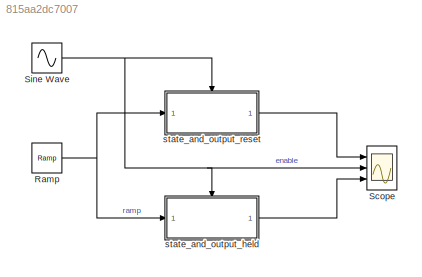
MODEL slx_815aa2dc7007
KIND model
CONFIG AbsTol = auto
CONFIG EnableMultiTasking = on
CONFIG FixedStep = auto
CONFIG MaxStep = auto
CONFIG MinStep = auto
CONFIG RelTol = 1e-3
CONFIG SampleTimeConstraint = Unconstrained
CONFIG Solver = ode45
CONFIG SolverName = ode45
CONFIG StartTime = 0.0
CONFIG StopTime = 10.0
BLOCK [Reference] Ramp  REF=simulink/Sources/Ramp
  Ports = [0, 1]
  SourceBlock = simulink/Sources/Ramp
  SourceProductBaseCode = SL
  SourceProductName = Simulink
  SourceType = Ramp
BLOCK [Scope] Scope
  Floating = off
  NumInputPorts = 3
  Ports = [3]
  ScopeSpecificationString = Simulink.scopes.TimeScopeBlockCfg('CurrentConfiguration', extmgr.ConfigurationSet(extmgr.Configuration('Core','General UI',true),extmgr.Configuration('Core','Source UI',true),extmgr.Configuration('Sources','WiredSimulink',true,'DataLoggingSaveFormat','StructureWithTime','DataLoggingLimitDataPoints',true,'DataLoggingDecimation','1','DataLoggingDecimateData',true),extmgr.Configuration('Visuals','Tim...<+3562ch>
BLOCK [Sin] Sine Wave
  Ports = [0, 1]
  SampleTime = 0
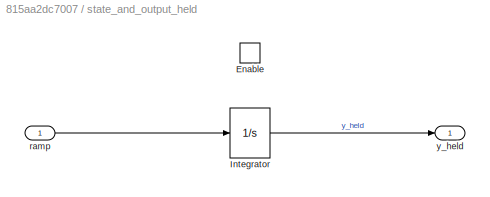
BLOCK [SubSystem] state_and_output_held
  Ports = [1, 1, 1]
  RequestExecContextInheritance = off
  TreatAsAtomicUnit = on
BLOCK [EnablePort] state_and_output_held/Enable
  AttributesFormatString = States when enabling: %<StatesWhenEnabling>
  Ports = []
BLOCK [Integrator] state_and_output_held/Integrator
  Ports = [1, 1]
BLOCK [Inport] state_and_output_held/ramp
  IconDisplay = Port number
BLOCK [Outport] state_and_output_held/y_held
  AttributesFormatString = Output when\ndisabled:  %<OutputWhenDisabled>
  IconDisplay = Port number
  InitialOutput = 0
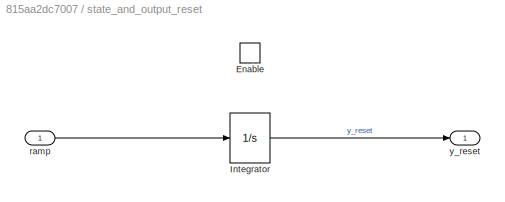
BLOCK [SubSystem] state_and_output_reset
  Ports = [1, 1, 1]
  RequestExecContextInheritance = off
  TreatAsAtomicUnit = on
BLOCK [EnablePort] state_and_output_reset/Enable
  AttributesFormatString = States when enabling: %<StatesWhenEnabling>
  Ports = []
  StatesWhenEnabling = reset
BLOCK [Integrator] state_and_output_reset/Integrator
  Ports = [1, 1]
BLOCK [Inport] state_and_output_reset/ramp
  IconDisplay = Port number
BLOCK [Outport] state_and_output_reset/y_reset
  AttributesFormatString = Output when\ndisabled:  %<OutputWhenDisabled>
  IconDisplay = Port number
  InitialOutput = 0
  OutputWhenDisabled = reset
NET Ramp:1 -> state_and_output_held:1, state_and_output_reset:1
NET Sine Wave:1 -> Scope:2, state_and_output_held:enable, state_and_output_reset:enable
LINE state_and_output_held/Integrator:1 -> state_and_output_held/y_held:1
LINE state_and_output_held/ramp:1 -> state_and_output_held/Integrator:1
LINE state_and_output_held:1 -> Scope:3
LINE state_and_output_reset/Integrator:1 -> state_and_output_reset/y_reset:1
LINE state_and_output_reset/ramp:1 -> state_and_output_reset/Integrator:1
LINE state_and_output_reset:1 -> Scope:1
note: NET lines group one-source signal fan-out (src -> all destinations, sorted); 1:1 wires keep LINE
